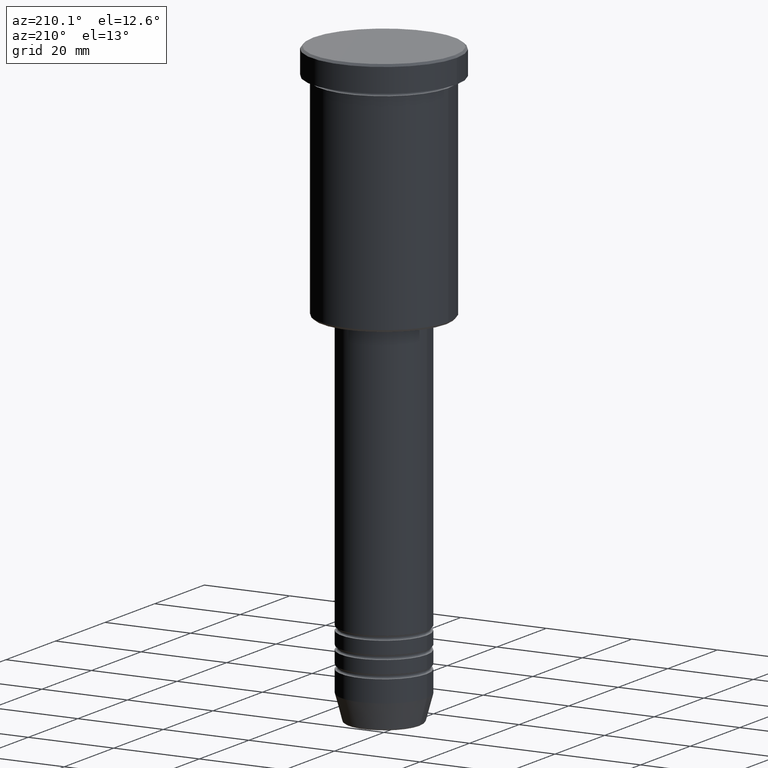
[diagram: clean part render]
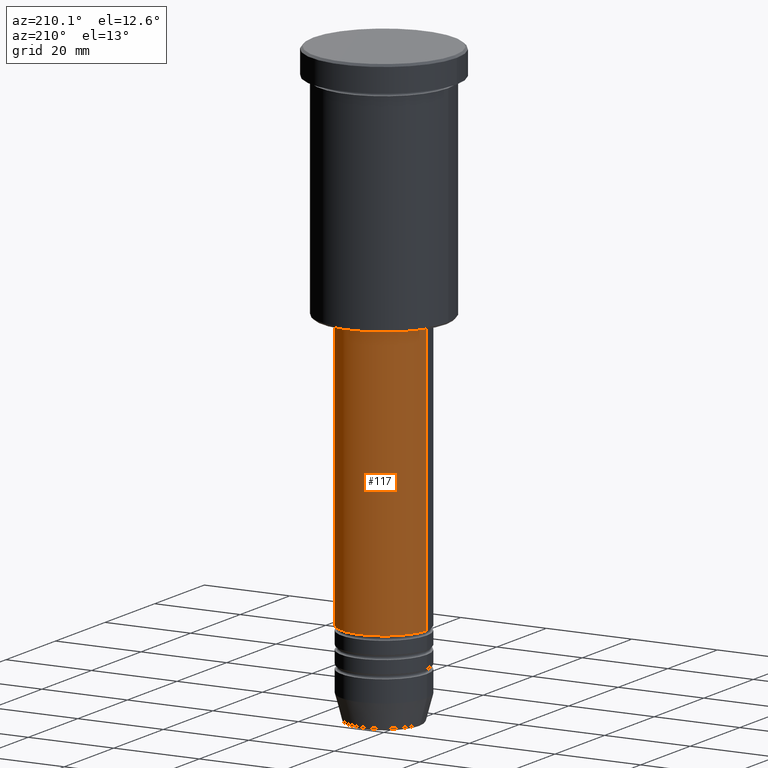
[diagram: same view with one face highlighted and labeled with its STEP entity id]
A machine part, auxiliary view. The second image highlights one B-rep face of the part: STEP entity #117.
In plain terms, the highlighted cylindrical surface (partial cylindrical patch) has radius 10 mm, axis along (-0, -0, 1).
Its self-contained STEP definition (entity closure, byte-faithful):
#36 = VECTOR ( 'NONE', #586, 1000.000000000000000 ) ;
#100 = CARTESIAN_POINT ( 'NONE',  ( 10.00000000000000000, 0.000000000000000000, 0.000000000000000000 ) ) ;
#117 = ADVANCED_FACE ( 'NONE', ( #481 ), #405, .T. ) ;
#205 = LINE ( 'NONE', #580, #1131 ) ;
#222 = DIRECTION ( 'NONE',  ( -0.000000000000000000, -0.000000000000000000, 1.000000000000000000 ) ) ;
#265 = AXIS2_PLACEMENT_3D ( 'NONE', #810, #638, #1161 ) ;
#312 = CIRCLE ( 'NONE', #942, 10.00000000000000178 ) ;
#386 = ORIENTED_EDGE ( 'NONE', *, *, #497, .F. ) ;
#398 = EDGE_LOOP ( 'NONE', ( #715, #505, #820, #386 ) ) ;
#405 = CYLINDRICAL_SURFACE ( 'NONE', #859, 10.00000000000000000 ) ;
#432 = DIRECTION ( 'NONE',  ( 1.000000000000000000, 0.000000000000000000, 0.000000000000000000 ) ) ;
#434 = CARTESIAN_POINT ( 'NONE',  ( 10.00000000000000178, 0.000000000000000000, -120.0000000000000000 ) ) ;
#441 = EDGE_CURVE ( 'NONE', #939, #828, #312, .T. ) ;
#481 = FACE_OUTER_BOUND ( 'NONE', #398, .T. ) ;
#493 = DIRECTION ( 'NONE',  ( -0.000000000000000000, -0.000000000000000000, 1.000000000000000000 ) ) ;
#497 = EDGE_CURVE ( 'NONE', #939, #1113, #829, .T. ) ;
#505 = ORIENTED_EDGE ( 'NONE', *, *, #537, .T. ) ;
#537 = EDGE_CURVE ( 'NONE', #828, #813, #205, .T. ) ;
#580 = CARTESIAN_POINT ( 'NONE',  ( -10.00000000000000000, 1.224646799147353256E-15, 0.000000000000000000 ) ) ;
#586 = DIRECTION ( 'NONE',  ( -0.000000000000000000, -0.000000000000000000, 1.000000000000000000 ) ) ;
#621 = CARTESIAN_POINT ( 'NONE',  ( -10.00000000000000178, 1.224646799147353454E-15, -120.0000000000000000 ) ) ;
#638 = DIRECTION ( 'NONE',  ( -0.000000000000000000, -0.000000000000000000, 1.000000000000000000 ) ) ;
#715 = ORIENTED_EDGE ( 'NONE', *, *, #441, .T. ) ;
#741 = EDGE_CURVE ( 'NONE', #1113, #813, #776, .T. ) ;
#776 = CIRCLE ( 'NONE', #265, 9.999999999999998224 ) ;
#779 = CARTESIAN_POINT ( 'NONE',  ( 0.000000000000000000, 0.000000000000000000, 0.000000000000000000 ) ) ;
#810 = CARTESIAN_POINT ( 'NONE',  ( 0.000000000000000000, 0.000000000000000000, -57.00000000000002842 ) ) ;
#813 = VERTEX_POINT ( 'NONE', #1072 ) ;
#820 = ORIENTED_EDGE ( 'NONE', *, *, #741, .F. ) ;
#828 = VERTEX_POINT ( 'NONE', #621 ) ;
#829 = LINE ( 'NONE', #100, #36 ) ;
#859 = AXIS2_PLACEMENT_3D ( 'NONE', #779, #1146, #432 ) ;
#939 = VERTEX_POINT ( 'NONE', #434 ) ;
#942 = AXIS2_PLACEMENT_3D ( 'NONE', #944, #493, #1030 ) ;
#944 = CARTESIAN_POINT ( 'NONE',  ( 0.000000000000000000, 0.000000000000000000, -120.0000000000000000 ) ) ;
#1001 = CARTESIAN_POINT ( 'NONE',  ( 9.999999999999998224, 0.000000000000000000, -57.00000000000002842 ) ) ;
#1030 = DIRECTION ( 'NONE',  ( 1.000000000000000000, 0.000000000000000000, 0.000000000000000000 ) ) ;
#1072 = CARTESIAN_POINT ( 'NONE',  ( -9.999999999999998224, 1.224646799147353256E-15, -57.00000000000002842 ) ) ;
#1113 = VERTEX_POINT ( 'NONE', #1001 ) ;
#1131 = VECTOR ( 'NONE', #222, 1000.000000000000000 ) ;
#1146 = DIRECTION ( 'NONE',  ( -0.000000000000000000, -0.000000000000000000, 1.000000000000000000 ) ) ;
#1161 = DIRECTION ( 'NONE',  ( 1.000000000000000000, 0.000000000000000000, 0.000000000000000000 ) ) ;